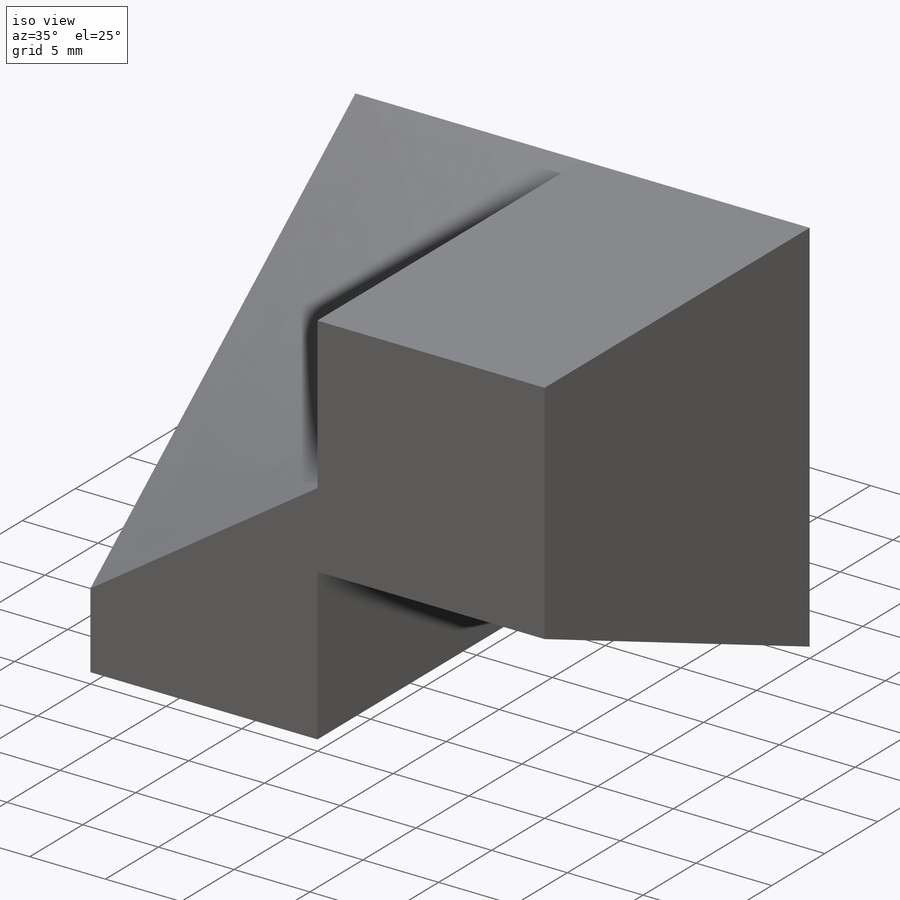
[diagram: iso view]
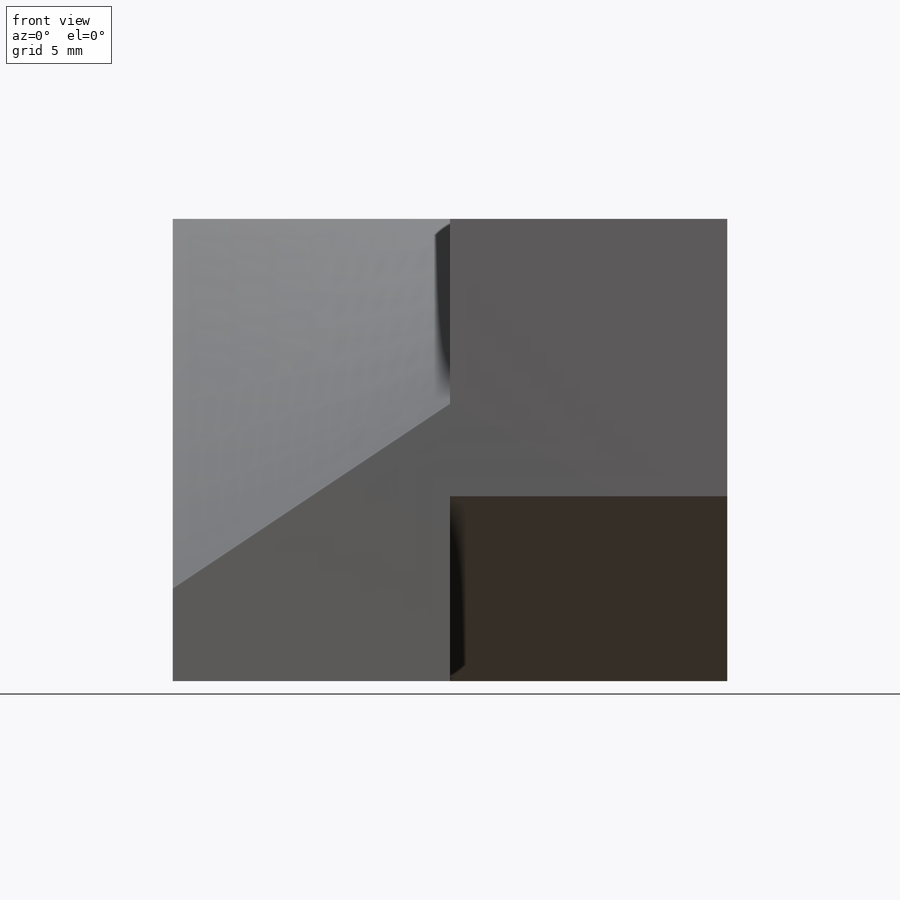
[diagram: front view]
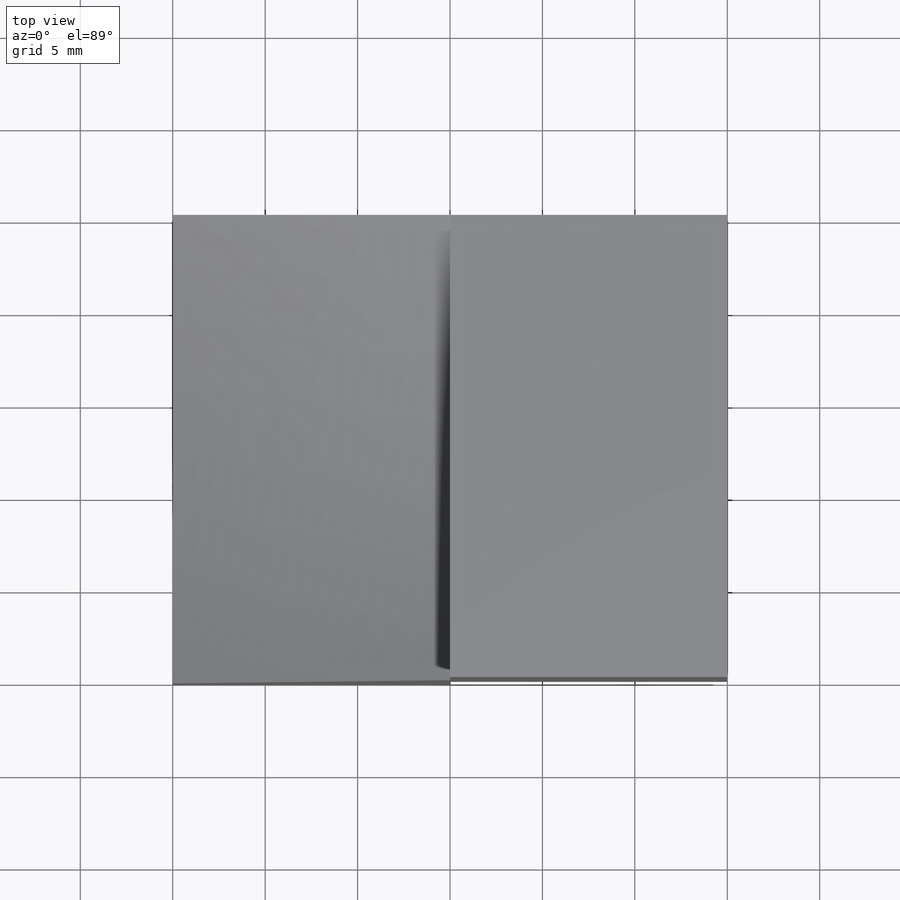
[diagram: top view]
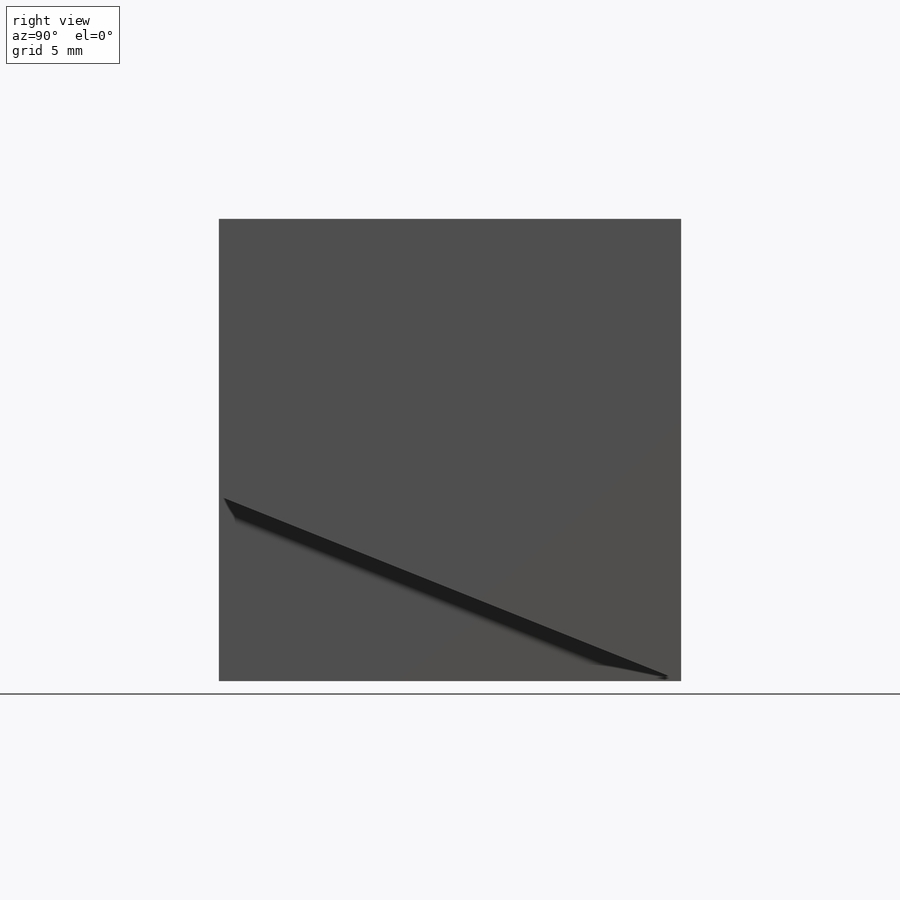
[diagram: right view]
SOLIDWORKS PART (.sldprt)
format: sldprt  version: not decoded by parser v0  size: 165,376 bytes
history: native  units: mm
features: sketch x3, cut_extrude x2, material x1, extrude x1 (+13 scaffold rows collapsed)
feature tree (20):
  scaffold x13  (default folders/planes/origin — collapsed)
  material  "Material <not specified>"
  sketch  "Sketch1"  dims[D1=30.0mm D2=25.0mm]
  extrude  "Boss-Extrude1"  Depth=25mm
  sketch  "Sketch4"  dims[D1=10.0mm]
  cut_extrude  "Cut-Extrude5"  Depth=15mm
  sketch  "3DSketch2"  dims[c1.D1=15.0mm c1.D2=~9.808403mm c1.D6=15.0mm c1.D3=~9.98786mm c2.D6=10.0mm c2.D4=~9.36816mm c3.D6=15.0mm c3.D5=20.0mm c3.D4=~16.910813mm c3.D3=15.0mm c4.D3=15.0mm c4.D4=~8.976427mm c4.D2=10.0mm c4.D6=5.0mm c4.D7=5.0mm c5.D6=15.0mm c5.D7=15.0mm c5.D2=15.0mm c6.D6=15.0mm c6.D2=15.0mm c7.D6=~18.027756mm c7.D7=~18.027756mm c8.D6=15.0mm c8.D7=15.0mm c8.D2=15.0mm c8.D4=15.0mm c9.D2=10.0mm c9.D8=10.0mm c9.D4=~26.925824mm c9.D7=25.0mm c9.D6=~18.520623mm c10.D4=15.0mm c10.D6=25.0mm c10.D2=25.0mm c10.D7=10.0mm c11.D2=5.0mm]
  cut_extrude  "Cut-Extrude6"  Depth=15mm
decode coverage: 6 of 6 modeling features carry decoded parameters
note: ~ marks probable driven/reference dimensions
note: suppression state not decoded; provenance and decode notes live in map.json
